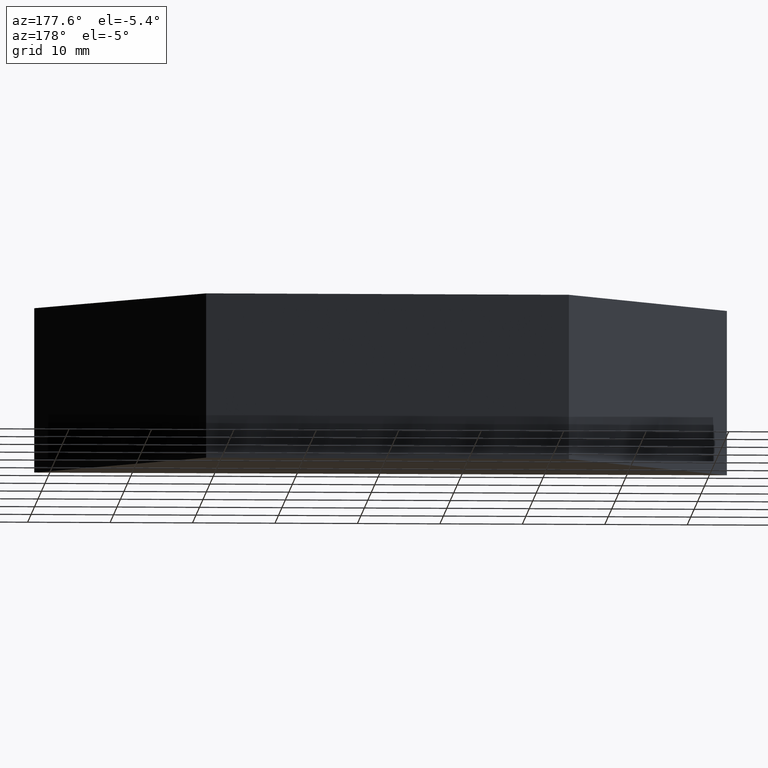
[diagram: clean part render]
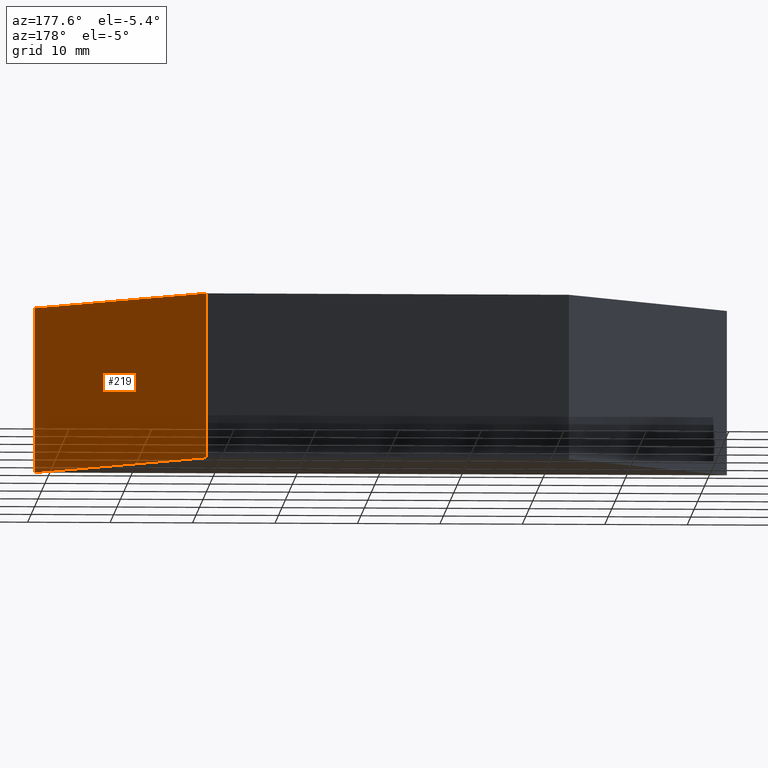
[diagram: same view with one face highlighted and labeled with its STEP entity id]
A machine part, auxiliary view. The second image highlights one B-rep face of the part: STEP entity #219.
In plain terms, the highlighted planar face has unit normal (-0.7071, -0.7071, 0).
Its self-contained STEP definition (entity closure, byte-faithful):
#1 = EDGE_CURVE ( 'NONE', #22, #148, #169, .T. ) ;
#7 = CARTESIAN_POINT ( 'NONE',  ( 161.2870676035176416, 99.84420763766894424, 20.00000000000000000 ) ) ;
#11 = CARTESIAN_POINT ( 'NONE',  ( 161.2870676035176416, 99.84420763766894424, 20.00000000000000000 ) ) ;
#12 = EDGE_CURVE ( 'NONE', #63, #23, #118, .T. ) ;
#16 = AXIS2_PLACEMENT_3D ( 'NONE', #121, #78, #96 ) ;
#21 = LINE ( 'NONE', #7, #137 ) ;
#22 = VERTEX_POINT ( 'NONE', #211 ) ;
#23 = VERTEX_POINT ( 'NONE', #136 ) ;
#28 = EDGE_CURVE ( 'NONE', #23, #148, #188, .T. ) ;
#34 = FACE_OUTER_BOUND ( 'NONE', #222, .T. ) ;
#41 = DIRECTION ( 'NONE',  ( -0.7071067811865539010, 0.7071067811865411334, 0.000000000000000000 ) ) ;
#46 = DIRECTION ( 'NONE',  ( -0.7071067811865539010, 0.7071067811865411334, 0.000000000000000000 ) ) ;
#56 = PLANE ( 'NONE',  #16 ) ;
#57 = ORIENTED_EDGE ( 'NONE', *, *, #71, .F. ) ;
#63 = VERTEX_POINT ( 'NONE', #190 ) ;
#71 = EDGE_CURVE ( 'NONE', #63, #22, #21, .T. ) ;
#75 = VECTOR ( 'NONE', #87, 1000.000000000000000 ) ;
#78 = DIRECTION ( 'NONE',  ( -0.7071067811865411334, -0.7071067811865539010, 0.000000000000000000 ) ) ;
#87 = DIRECTION ( 'NONE',  ( -0.000000000000000000, -0.000000000000000000, -1.000000000000000000 ) ) ;
#96 = DIRECTION ( 'NONE',  ( 0.7071067811865539010, -0.7071067811865411334, 0.000000000000000000 ) ) ;
#111 = VECTOR ( 'NONE', #46, 1000.000000000000000 ) ;
#118 = LINE ( 'NONE', #11, #75 ) ;
#121 = CARTESIAN_POINT ( 'NONE',  ( 161.2870676035176416, 99.84420763766894424, 20.00000000000000000 ) ) ;
#130 = ORIENTED_EDGE ( 'NONE', *, *, #1, .F. ) ;
#132 = CARTESIAN_POINT ( 'NONE',  ( 141.2870676035172437, 119.8442076376689727, 20.00000000000000000 ) ) ;
#136 = CARTESIAN_POINT ( 'NONE',  ( 161.2870676035176416, 99.84420763766894424, 0.000000000000000000 ) ) ;
#137 = VECTOR ( 'NONE', #41, 1000.000000000000000 ) ;
#146 = ORIENTED_EDGE ( 'NONE', *, *, #28, .T. ) ;
#148 = VERTEX_POINT ( 'NONE', #183 ) ;
#162 = ORIENTED_EDGE ( 'NONE', *, *, #12, .T. ) ;
#169 = LINE ( 'NONE', #132, #178 ) ;
#173 = DIRECTION ( 'NONE',  ( -0.000000000000000000, -0.000000000000000000, -1.000000000000000000 ) ) ;
#178 = VECTOR ( 'NONE', #173, 1000.000000000000000 ) ;
#183 = CARTESIAN_POINT ( 'NONE',  ( 141.2870676035172437, 119.8442076376689727, 0.000000000000000000 ) ) ;
#188 = LINE ( 'NONE', #192, #111 ) ;
#190 = CARTESIAN_POINT ( 'NONE',  ( 161.2870676035176416, 99.84420763766894424, 20.00000000000000000 ) ) ;
#192 = CARTESIAN_POINT ( 'NONE',  ( 161.2870676035176416, 99.84420763766894424, 0.000000000000000000 ) ) ;
#211 = CARTESIAN_POINT ( 'NONE',  ( 141.2870676035172437, 119.8442076376689727, 20.00000000000000000 ) ) ;
#219 = ADVANCED_FACE ( 'NONE', ( #34 ), #56, .F. ) ;
#222 = EDGE_LOOP ( 'NONE', ( #146, #130, #57, #162 ) ) ;